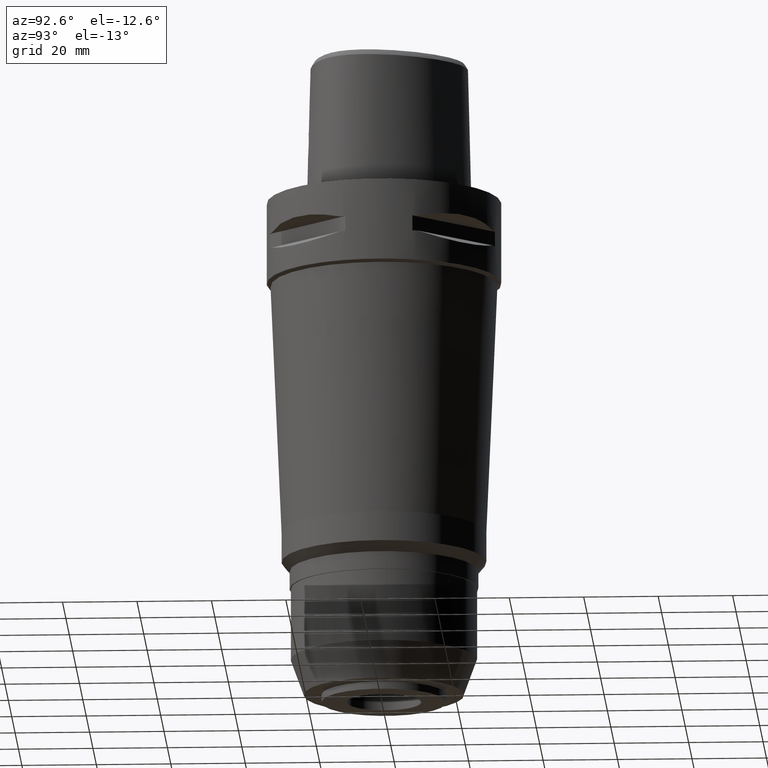
[diagram: clean part render]
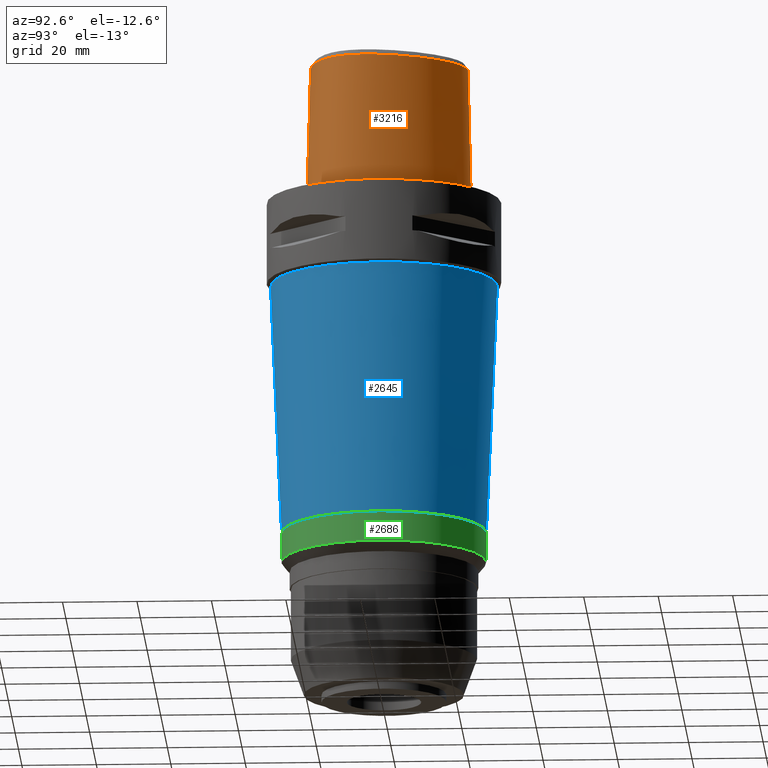
[diagram: same view with three faces highlighted in distinct colors, each labeled with its STEP entity id]
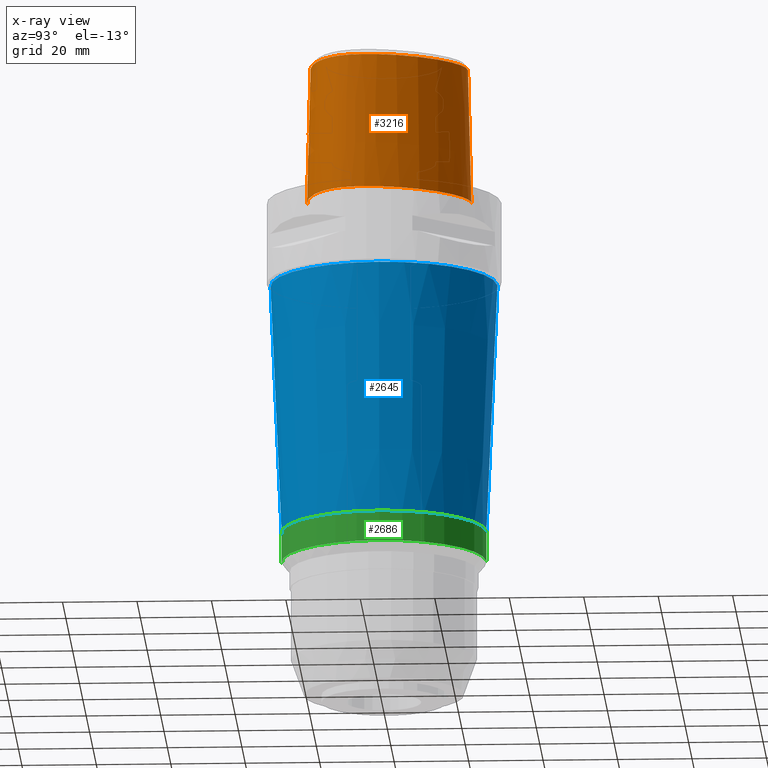
[diagram: x-ray of the same camera — body ghosted, the three highlighted faces saturated]
A machine part, auxiliary view with three faces highlighted in distinct colors.
The next image is the same camera in x-ray (body ghosted, the three faces saturated) — at least one of them is partly hidden behind the body in this view.
Their STEP definitions:

[orange] entity #3216 — the highlighted face is a freeform B-spline surface patch.
#130=CARTESIAN_POINT('',(3.637738219117E0,-1.956971420299E1,3.652185956444E1));
#140=CARTESIAN_POINT('',(-1.753179709631E-11,2.256201468012E1,
3.652186680744E1));
#141=CARTESIAN_POINT('',(4.059692186485E-1,2.256201468011E1,3.652186680744E1));
#142=CARTESIAN_POINT('',(1.215708190393E0,2.251895927503E1,3.652180780509E1));
#143=CARTESIAN_POINT('',(2.502513231461E0,2.231394722388E1,3.652187350702E1));
#144=CARTESIAN_POINT('',(3.856857694488E0,2.195078888201E1,3.652186642934E1));
#145=CARTESIAN_POINT('',(5.288803310858E0,2.140839809336E1,3.652186813346E1));
#146=CARTESIAN_POINT('',(6.814106100568E0,2.065269086277E1,3.652187266965E1));
#147=CARTESIAN_POINT('',(8.388076620838E0,1.967742327895E1,3.652186490368E1));
#148=CARTESIAN_POINT('',(9.953552473781E0,1.850620849464E1,3.652187142295E1));
#149=CARTESIAN_POINT('',(1.154707336375E1,1.710208464275E1,3.652186088107E1));
#150=CARTESIAN_POINT('',(1.325718400724E1,1.532699897142E1,3.652186209440E1));
#151=CARTESIAN_POINT('',(1.494786977344E1,1.324423809590E1,3.652187037438E1));
#152=CARTESIAN_POINT('',(1.651943836388E1,1.094485554210E1,3.652186543555E1));
#153=CARTESIAN_POINT('',(1.791696023472E1,8.492674143887E0,3.652185673720E1));
#154=CARTESIAN_POINT('',(1.909029754391E1,5.977921619796E0,3.652187113067E1));
#155=CARTESIAN_POINT('',(2.001071496840E1,3.483876746223E0,3.652186291024E1));
#156=CARTESIAN_POINT('',(2.064766116967E1,1.180632668431E0,3.652186446136E1));
#157=CARTESIAN_POINT('',(2.104399964850E1,-8.908057052164E-1,3.652186881126E1));
#158=CARTESIAN_POINT('',(2.125189848031E1,-2.816681699648E0,3.652186429065E1));
#159=CARTESIAN_POINT('',(2.128786162353E1,-4.642633843035E0,3.652187260590E1));
#160=CARTESIAN_POINT('',(2.116147594957E1,-6.317201025537E0,3.652186530750E1));
#161=CARTESIAN_POINT('',(2.090025276163E1,-7.808034691474E0,3.652186825432E1));
#162=CARTESIAN_POINT('',(2.052354294955E1,-9.146651933778E0,3.652187406129E1));
#163=CARTESIAN_POINT('',(2.004844662487E1,-1.034256039050E1,3.652187144025E1));
#164=CARTESIAN_POINT('',(1.948009210008E1,-1.142549541665E1,3.652186517804E1));
#165=CARTESIAN_POINT('',(1.879235085262E1,-1.245027677572E1,3.652185118805E1));
#166=CARTESIAN_POINT('',(1.795148571518E1,-1.345723944660E1,3.652187504159E1));
#167=CARTESIAN_POINT('',(1.693561194127E1,-1.444589288719E1,3.652186356756E1));
#168=CARTESIAN_POINT('',(1.572025821129E1,-1.541239646868E1,3.652187093910E1));
#169=CARTESIAN_POINT('',(1.427441325474E1,-1.634809682721E1,3.652186983755E1));
#170=CARTESIAN_POINT('',(1.261807130218E1,-1.721143313425E1,3.652186359817E1));
#171=CARTESIAN_POINT('',(1.079564855236E1,-1.796873525914E1,3.652187886681E1));
#172=CARTESIAN_POINT('',(8.744535281075E0,-1.863524815404E1,3.652185431493E1));
#173=CARTESIAN_POINT('',(6.321109923199E0,-1.920810576319E1,3.652188260620E1));
#174=CARTESIAN_POINT('',(4.554734790905E0,-1.947201126586E1,3.652183600593E1));
#175=CARTESIAN_POINT('',(3.637738219117E0,-1.956971420299E1,3.652185956444E1));
#247=DIRECTION('',(-1.665636293796E-9,-2.499140646182E-2,-9.996876660253E-1));
#248=VECTOR('',#247,1.225382733632E1);
#249=CARTESIAN_POINT('',(2.041042029991E-8,-1.988004246002E1,3.180000004972E1));
#250=LINE('',#249,#248);
#268=CARTESIAN_POINT('',(-8.734060253135E-13,-2.038876923348E1,1.145E1));
#273=DIRECTION('',(-5.344529075988E-13,-2.499051295390E-2,-9.996876883619E-1));
#274=VECTOR('',#273,1.145357708542E1);
#275=CARTESIAN_POINT('',(-8.734060253135E-13,-2.038876923348E1,1.145E1));
#276=LINE('',#275,#274);
#296=CARTESIAN_POINT('',(-6.994803601024E-12,-2.0675E1,7.419990547911E-14));
#297=CARTESIAN_POINT('',(9.696277241607E-1,-2.0675E1,7.419990547911E-14));
#298=CARTESIAN_POINT('',(2.869323182917E0,-2.059665206108E1,
-3.443629597593E-14));
#299=CARTESIAN_POINT('',(5.628892434573E0,-2.025948305172E1,0.E0));
#300=CARTESIAN_POINT('',(8.212436796028E0,-1.972494186774E1,0.E0));
#301=CARTESIAN_POINT('',(1.055597973773E1,-1.902990564621E1,0.E0));
#302=CARTESIAN_POINT('',(1.262660344190E1,-1.821489800558E1,0.E0));
#303=CARTESIAN_POINT('',(1.442647808134E1,-1.731401627908E1,0.E0));
#304=CARTESIAN_POINT('',(1.597839645051E1,-1.634840968166E1,0.E0));
#305=CARTESIAN_POINT('',(1.729281960120E1,-1.534469091911E1,0.E0));
#306=CARTESIAN_POINT('',(1.840650512325E1,-1.430616174029E1,0.E0));
#307=CARTESIAN_POINT('',(1.934077756395E1,-1.323800062297E1,0.E0));
#308=CARTESIAN_POINT('',(2.012500176300E1,-1.212640046703E1,0.E0));
#309=CARTESIAN_POINT('',(2.077630963133E1,-1.094552325843E1,0.E0));
#310=CARTESIAN_POINT('',(2.130486514484E1,-9.682181809785E0,0.E0));
#311=CARTESIAN_POINT('',(2.172376206675E1,-8.295193919519E0,0.E0));
#312=CARTESIAN_POINT('',(2.202312056010E1,-6.764018905119E0,0.E0));
#313=CARTESIAN_POINT('',(2.218684730726E1,-5.054629295905E0,0.E0));
#314=CARTESIAN_POINT('',(2.218811908827E1,-3.165592134656E0,0.E0));
#315=CARTESIAN_POINT('',(2.199905226159E1,-1.084853794272E0,0.E0));
#316=CARTESIAN_POINT('',(2.158830013197E1,1.183756809833E0,0.E0));
#317=CARTESIAN_POINT('',(2.092943410609E1,3.612537132412E0,0.E0));
#318=CARTESIAN_POINT('',(2.000599650194E1,6.153756352748E0,0.E0));
#319=CARTESIAN_POINT('',(1.882401156021E1,8.726465449099E0,0.E0));
#320=CARTESIAN_POINT('',(1.741188367108E1,1.123978369355E1,0.E0));
#321=CARTESIAN_POINT('',(1.581553256589E1,1.360754052028E1,0.E0));
#322=CARTESIAN_POINT('',(1.410265285497E1,1.574816844294E1,0.E0));
#323=CARTESIAN_POINT('',(1.233221950781E1,1.761876304960E1,0.E0));
#324=CARTESIAN_POINT('',(1.056748826054E1,1.919100276061E1,0.E0));
#325=CARTESIAN_POINT('',(8.844934705549E0,2.047447793490E1,0.E0));
#326=CARTESIAN_POINT('',(7.188492926757E0,2.148988068005E1,0.E0));
#327=CARTESIAN_POINT('',(5.609342914043E0,2.226541486842E1,0.E0));
#328=CARTESIAN_POINT('',(4.104373905572E0,2.283161133478E1,0.E0));
#329=CARTESIAN_POINT('',(2.671691629950E0,2.321243880612E1,0.E0));
#330=CARTESIAN_POINT('',(1.305815271442E0,2.342910893410E1,
-3.311380480877E-14));
#331=CARTESIAN_POINT('',(4.290431846877E-1,2.347499999999E1,
7.135033304924E-14));
#332=CARTESIAN_POINT('',(4.298360401327E-11,2.347499999999E1,
7.135033304924E-14));
#337=CARTESIAN_POINT('',(4.298360401327E-11,2.347499999999E1,
7.135033304924E-14));
#373=CARTESIAN_POINT('',(-6.994803601024E-12,-2.0675E1,7.419990547911E-14));
#1082=CARTESIAN_POINT('',(-8.734060253135E-13,-2.038876923348E1,1.145E1));
#1083=CARTESIAN_POINT('',(3.518410039390E-1,-2.038876923348E1,1.145E1));
#1084=CARTESIAN_POINT('',(1.056002269219E0,-2.037568214282E1,1.154238708990E1));
#1085=CARTESIAN_POINT('',(2.040385422200E0,-2.032131306427E1,1.194792367503E1));
#1086=CARTESIAN_POINT('',(2.891794145479E0,-2.024379318177E1,1.259807706062E1));
#1087=CARTESIAN_POINT('',(3.545775398700E0,-2.016065841224E1,1.344776599254E1));
#1088=CARTESIAN_POINT('',(3.957111572053E0,-2.009016928170E1,1.443938952574E1));
#1089=CARTESIAN_POINT('',(4.096327614963E0,-2.004685475213E1,1.549997055253E1));
#1090=CARTESIAN_POINT('',(3.957577704511E0,-2.003680793094E1,1.655714913641E1));
#1091=CARTESIAN_POINT('',(3.549577819491E0,-2.005726835327E1,1.754497021868E1));
#1092=CARTESIAN_POINT('',(2.899403737140E0,-2.009772754991E1,1.839411373098E1));
#1093=CARTESIAN_POINT('',(2.049555943288E0,-2.014302748467E1,1.904720420744E1));
#1094=CARTESIAN_POINT('',(1.060000729701E0,-2.017769463663E1,1.945708074101E1));
#1095=CARTESIAN_POINT('',(3.531896813644E-1,-2.018628283969E1,1.955E1));
#1096=CARTESIAN_POINT('',(0.E0,-2.018628283969E1,1.955E1));
#1101=CARTESIAN_POINT('',(3.736696120838E0,-1.967778323292E1,3.180000004973E1));
#1102=CARTESIAN_POINT('',(3.726005752326E0,-1.966575923680E1,3.232454431401E1));
#1103=CARTESIAN_POINT('',(3.704089546608E0,-1.964135163374E1,3.337368958252E1));
#1104=CARTESIAN_POINT('',(3.671106187705E0,-1.960533295284E1,3.494764256979E1));
#1105=CARTESIAN_POINT('',(3.649042743234E0,-1.958170238761E1,3.599710209057E1));
#1106=CARTESIAN_POINT('',(3.637738219117E0,-1.956971420299E1,3.652185956444E1));
#1111=DIRECTION('',(1.656446034497E-12,2.499051290963E-2,-9.996876883630E-1));
#1112=VECTOR('',#1111,3.653327657485E1);
#1113=CARTESIAN_POINT('',(-1.753179709631E-11,2.256201468012E1,
3.652186680744E1));
#1114=LINE('',#1113,#1112);
#1118=CARTESIAN_POINT('',(3.736696120838E0,-1.967778323292E1,3.180000004973E1));
#1119=CARTESIAN_POINT('',(3.322953877844E0,-1.972294683117E1,3.180000004973E1));
#1120=CARTESIAN_POINT('',(2.494485023251E0,-1.979770229043E1,3.179999998342E1));
#1121=CARTESIAN_POINT('',(1.247889117313E0,-1.986528006854E1,3.179999998343E1));
#1122=CARTESIAN_POINT('',(4.161790006858E-1,-1.988004246001E1,
3.180000004972E1));
#1123=CARTESIAN_POINT('',(2.041042029991E-8,-1.988004246002E1,
3.180000004972E1));
#1128=CARTESIAN_POINT('',(2.041042029991E-8,-1.988004246002E1,
3.180000004972E1));
#1617=VERTEX_POINT('',#130);
#1618=VERTEX_POINT('',#1101);
#1624=CARTESIAN_POINT('',(-1.753179709631E-11,2.256201468012E1,
3.652186680744E1));
#1625=VERTEX_POINT('',#1624);
#1626=VERTEX_POINT('',#337);
#1627=VERTEX_POINT('',#373);
#1628=VERTEX_POINT('',#1128);
#1629=CARTESIAN_POINT('',(0.E0,-2.018628283969E1,1.955E1));
#1630=VERTEX_POINT('',#1629);
#1631=VERTEX_POINT('',#268);
#3104=CARTESIAN_POINT('',(-6.840631435233E-1,-2.068668115883E1,
-7.304374764660E-1));
#3105=CARTESIAN_POINT('',(-6.779734153640E-1,-2.037023492491E1,
1.193047878228E1));
#3106=CARTESIAN_POINT('',(-6.718836872047E-1,-2.005378869098E1,
2.459139504102E1));
#3107=CARTESIAN_POINT('',(-6.657939590453E-1,-1.973734245706E1,
3.725231129976E1));
#3108=CARTESIAN_POINT('',(-4.561077449036E-1,-2.069106755112E1,
-7.304374764660E-1));
#3109=CARTESIAN_POINT('',(-4.520500681702E-1,-2.037458456176E1,
1.193047878228E1));
#3110=CARTESIAN_POINT('',(-4.479923914368E-1,-2.005810157240E1,
2.459139504102E1));
#3111=CARTESIAN_POINT('',(-4.439347147035E-1,-1.974161858304E1,
3.725231129976E1));
#3112=CARTESIAN_POINT('',(1.886855603003E0,-2.071358919031E1,
-7.304374764660E-1));
#3113=CARTESIAN_POINT('',(1.870063866720E0,-2.039691460049E1,1.193047878228E1));
#3114=CARTESIAN_POINT('',(1.853272130438E0,-2.008024001068E1,2.459139504102E1));
#3115=CARTESIAN_POINT('',(1.836480394156E0,-1.976356542086E1,3.725231129976E1));
#3116=CARTESIAN_POINT('',(6.344715575795E0,-2.031619964464E1,
-7.304374764660E-1));
#3117=CARTESIAN_POINT('',(6.288476595026E0,-2.000290580423E1,1.193047878228E1));
#3118=CARTESIAN_POINT('',(6.232237614258E0,-1.968961196383E1,2.459139504102E1));
#3119=CARTESIAN_POINT('',(6.175998633490E0,-1.937631812342E1,3.725231129976E1));
#3120=CARTESIAN_POINT('',(1.123887130078E1,-1.891049775534E1,
-7.304374764660E-1));
#3121=CARTESIAN_POINT('',(1.113012658667E1,-1.861140124601E1,1.193047878228E1));
#3122=CARTESIAN_POINT('',(1.102138187256E1,-1.831230473668E1,2.459139504102E1));
#3123=CARTESIAN_POINT('',(1.091263715845E1,-1.801320822735E1,3.725231129976E1));
#3124=CARTESIAN_POINT('',(1.468244496867E1,-1.723001772587E1,
-7.304374764660E-1));
#3125=CARTESIAN_POINT('',(1.452531267775E1,-1.695413756079E1,1.193047878228E1));
#3126=CARTESIAN_POINT('',(1.436818038683E1,-1.667825739571E1,2.459139504102E1));
#3127=CARTESIAN_POINT('',(1.421104809591E1,-1.640237723064E1,3.725231129976E1));
#3128=CARTESIAN_POINT('',(1.697022730795E1,-1.569280482714E1,
-7.304374764660E-1));
#3129=CARTESIAN_POINT('',(1.677374388642E1,-1.544292480257E1,1.193047878228E1));
#3130=CARTESIAN_POINT('',(1.657726046490E1,-1.519304477800E1,2.459139504102E1));
#3131=CARTESIAN_POINT('',(1.638077704338E1,-1.494316475343E1,3.725231129976E1));
#3132=CARTESIAN_POINT('',(1.858171406217E1,-1.418198046200E1,
-7.304374764660E-1));
#3133=CARTESIAN_POINT('',(1.835112160913E1,-1.396357042271E1,1.193047878228E1));
#3134=CARTESIAN_POINT('',(1.812052915609E1,-1.374516038343E1,2.459139504102E1));
#3135=CARTESIAN_POINT('',(1.788993670304E1,-1.352675034414E1,3.725231129976E1));
#3136=CARTESIAN_POINT('',(1.966427014215E1,-1.283600704375E1,
-7.304374764660E-1));
#3137=CARTESIAN_POINT('',(1.940779776125E1,-1.264961932720E1,1.193047878228E1));
#3138=CARTESIAN_POINT('',(1.915132538035E1,-1.246323161065E1,2.459139504102E1));
#3139=CARTESIAN_POINT('',(1.889485299944E1,-1.227684389410E1,3.725231129976E1));
#3140=CARTESIAN_POINT('',(2.036546124072E1,-1.175800452953E1,
-7.304374764660E-1));
#3141=CARTESIAN_POINT('',(2.009084481804E1,-1.159945466337E1,1.193047878228E1));
#3142=CARTESIAN_POINT('',(1.981622839536E1,-1.144090479722E1,2.459139504102E1));
#3143=CARTESIAN_POINT('',(1.954161197268E1,-1.128235493106E1,3.725231129976E1));
#3144=CARTESIAN_POINT('',(2.094844325402E1,-1.061175396792E1,
-7.304374764660E-1));
#3145=CARTESIAN_POINT('',(2.065879056777E1,-1.048283623234E1,1.193047878228E1));
#3146=CARTESIAN_POINT('',(2.036913788153E1,-1.035391849677E1,2.459139504102E1));
#3147=CARTESIAN_POINT('',(2.007948519528E1,-1.022500076120E1,3.725231129976E1));
#3148=CARTESIAN_POINT('',(2.157281238775E1,-9.001246193735E0,
-7.304374764660E-1));
#3149=CARTESIAN_POINT('',(2.126836750849E1,-8.910752273169E0,1.193047878228E1));
#3150=CARTESIAN_POINT('',(2.096392262924E1,-8.820258352603E0,2.459139504102E1));
#3151=CARTESIAN_POINT('',(2.065947774999E1,-8.729764432038E0,3.725231129976E1));
#3152=CARTESIAN_POINT('',(2.207548128607E1,-6.850245534759E0,
-7.304374764660E-1));
#3153=CARTESIAN_POINT('',(2.176083721008E1,-6.805026057257E0,1.193047878228E1));
#3154=CARTESIAN_POINT('',(2.144619313410E1,-6.759806579754E0,2.459139504102E1));
#3155=CARTESIAN_POINT('',(2.113154905811E1,-6.714587102252E0,3.725231129976E1));
#3156=CARTESIAN_POINT('',(2.226285556029E1,-4.100361500079E0,
-7.304374764660E-1));
#3157=CARTESIAN_POINT('',(2.194536987677E1,-4.102220498714E0,1.193047878228E1));
#3158=CARTESIAN_POINT('',(2.162788419325E1,-4.104079497350E0,2.459139504102E1));
#3159=CARTESIAN_POINT('',(2.131039850973E1,-4.105938495986E0,3.725231129976E1));
#3160=CARTESIAN_POINT('',(2.199640701092E1,-2.778990171146E-1,
-7.304374764660E-1));
#3161=CARTESIAN_POINT('',(2.168301110465E1,-3.332743871281E-1,
1.193047878228E1));
#3162=CARTESIAN_POINT('',(2.136961519838E1,-3.886497571416E-1,
2.459139504102E1));
#3163=CARTESIAN_POINT('',(2.105621929211E1,-4.440251271551E-1,
3.725231129976E1));
#3164=CARTESIAN_POINT('',(2.076670354433E1,4.663413652263E0,
-7.304374764660E-1));
#3165=CARTESIAN_POINT('',(2.046725052836E1,4.555493679699E0,1.193047878228E1));
#3166=CARTESIAN_POINT('',(2.016779751239E1,4.447573707135E0,2.459139504102E1));
#3167=CARTESIAN_POINT('',(1.986834449641E1,4.339653734571E0,3.725231129976E1));
#3168=CARTESIAN_POINT('',(1.808416037876E1,1.044089486958E1,
-7.304374764660E-1));
#3169=CARTESIAN_POINT('',(1.780867315828E1,1.028184213020E1,1.193047878228E1));
#3170=CARTESIAN_POINT('',(1.753318593781E1,1.012278939081E1,2.459139504102E1));
#3171=CARTESIAN_POINT('',(1.725769871734E1,9.963736651423E0,3.725231129976E1));
#3172=CARTESIAN_POINT('',(1.442198651612E1,1.565278599923E1,
-7.304374764660E-1));
#3173=CARTESIAN_POINT('',(1.417879765611E1,1.544741201258E1,1.193047878228E1));
#3174=CARTESIAN_POINT('',(1.393560879610E1,1.524203802592E1,2.459139504102E1));
#3175=CARTESIAN_POINT('',(1.369241993609E1,1.503666403927E1,3.725231129976E1));
#3176=CARTESIAN_POINT('',(1.075753573487E1,1.918839675361E1,
-7.304374764660E-1));
#3177=CARTESIAN_POINT('',(1.055288411404E1,1.894467594103E1,1.193047878228E1));
#3178=CARTESIAN_POINT('',(1.034823249321E1,1.870095512845E1,2.459139504102E1));
#3179=CARTESIAN_POINT('',(1.014358087238E1,1.845723431586E1,3.725231129976E1));
#3180=CARTESIAN_POINT('',(7.580410837583E0,2.133037925850E1,
-7.304374764660E-1));
#3181=CARTESIAN_POINT('',(7.420053181550E0,2.105635752770E1,1.193047878228E1));
#3182=CARTESIAN_POINT('',(7.259695525517E0,2.078233579690E1,2.459139504102E1));
#3183=CARTESIAN_POINT('',(7.099337869484E0,2.050831406609E1,3.725231129976E1));
#3184=CARTESIAN_POINT('',(5.105252914209E0,2.254305023766E1,
-7.304374764660E-1));
#3185=CARTESIAN_POINT('',(4.987110700837E0,2.224795288908E1,1.193047878228E1));
#3186=CARTESIAN_POINT('',(4.868968487465E0,2.195285554050E1,2.459139504102E1));
#3187=CARTESIAN_POINT('',(4.750826274093E0,2.165775819192E1,3.725231129976E1));
#3188=CARTESIAN_POINT('',(2.568271204734E0,2.331126237890E1,
-7.304374764660E-1));
#3189=CARTESIAN_POINT('',(2.503210923247E0,2.299958947788E1,1.193047878228E1));
#3190=CARTESIAN_POINT('',(2.438150641760E0,2.268791657686E1,2.459139504102E1));
#3191=CARTESIAN_POINT('',(2.373090360272E0,2.237624367583E1,3.725231129976E1));
#3192=CARTESIAN_POINT('',(6.155340737770E-1,2.351883497246E1,
-7.304374764660E-1));
#3193=CARTESIAN_POINT('',(5.990982059345E-1,2.320165477282E1,1.193047878228E1));
#3194=CARTESIAN_POINT('',(5.826623380920E-1,2.288447457318E1,2.459139504102E1));
#3195=CARTESIAN_POINT('',(5.662264702495E-1,2.256729437354E1,3.725231129976E1));
#3196=CARTESIAN_POINT('',(-4.812391252071E-1,2.348607175779E1,
-7.304374764660E-1));
#3197=CARTESIAN_POINT('',(-4.685452000909E-1,2.316976082902E1,
1.193047878228E1));
#3198=CARTESIAN_POINT('',(-4.558512749747E-1,2.285344990024E1,
2.459139504102E1));
#3199=CARTESIAN_POINT('',(-4.431573498585E-1,2.253713897146E1,
3.725231129976E1));
#3200=CARTESIAN_POINT('',(-7.217521644634E-1,2.347150798189E1,
-7.304374764660E-1));
#3201=CARTESIAN_POINT('',(-7.025952913839E-1,2.315559754245E1,
1.193047878228E1));
#3202=CARTESIAN_POINT('',(-6.834384183043E-1,2.283968710300E1,
2.459139504102E1));
#3203=CARTESIAN_POINT('',(-6.642815452248E-1,2.252377666355E1,
3.725231129976E1));
#3204=B_SPLINE_SURFACE_WITH_KNOTS('',3,3,((#3104,#3105,#3106,#3107),(#3108,
#3109,#3110,#3111),(#3112,#3113,#3114,#3115),(#3116,#3117,#3118,#3119),(#3120,
#3121,#3122,#3123),(#3124,#3125,#3126,#3127),(#3128,#3129,#3130,#3131),(#3132,
#3133,#3134,#3135),(#3136,#3137,#3138,#3139),(#3140,#3141,#3142,#3143),(#3144,
#3145,#3146,#3147),(#3148,#3149,#3150,#3151),(#3152,#3153,#3154,#3155),(#3156,
#3157,#3158,#3159),(#3160,#3161,#3162,#3163),(#3164,#3165,#3166,#3167),(#3168,
#3169,#3170,#3171),(#3172,#3173,#3174,#3175),(#3176,#3177,#3178,#3179),(#3180,
#3181,#3182,#3183),(#3184,#3185,#3186,#3187),(#3188,#3189,#3190,#3191),(#3192,
#3193,#3194,#3195),(#3196,#3197,#3198,#3199),(#3200,#3201,#3202,#3203)),
.UNSPECIFIED.,.F.,.F.,.F.,(4,1,1,1,1,1,1,1,1,1,1,1,1,1,1,1,1,1,1,1,1,1,4),(4,4),
(-8.985960173573E-3,0.E0,8.333333333339E-2,1.666666666667E-1,2.083333333333E-1,
2.5E-1,2.916666666667E-1,3.125E-1,3.333333333332E-1,3.541666666666E-1,
3.749999999999E-1,4.166666666666E-1,4.583333333332E-1,4.999999999999E-1,
5.833333333331E-1,6.666666666665E-1,7.499999999998E-1,8.333333333330E-1,
8.749999999997E-1,9.166666666664E-1,9.583333333330E-1,1.E0,1.011710456763E0),(
6.551019827300E-9,9.999996658980E-1),.UNSPECIFIED.);
#3205=ORIENTED_EDGE('',*,*,#2481,.F.);
#3206=ORIENTED_EDGE('',*,*,#2465,.F.);
#3207=ORIENTED_EDGE('',*,*,#3096,.T.);
#3208=ORIENTED_EDGE('',*,*,#2461,.F.);
#3210=ORIENTED_EDGE('',*,*,#3209,.F.);
#3211=ORIENTED_EDGE('',*,*,#1824,.T.);
#3212=ORIENTED_EDGE('',*,*,#2090,.F.);
#3213=ORIENTED_EDGE('',*,*,#2455,.T.);
#3214=EDGE_LOOP('',(#3205,#3206,#3207,#3208,#3210,#3211,#3212,#3213));
#3215=FACE_OUTER_BOUND('',#3214,.F.);
#176=B_SPLINE_CURVE_WITH_KNOTS('',3,(#140,#141,#142,#143,#144,#145,#146,#147,
#148,#149,#150,#151,#152,#153,#154,#155,#156,#157,#158,#159,#160,#161,#162,#163,
#164,#165,#166,#167,#168,#169,#170,#171,#172,#173,#174,#175),.UNSPECIFIED.,.F.,
.F.,(4,1,1,1,1,1,1,1,1,1,1,1,1,1,1,1,1,1,1,1,1,1,1,1,1,1,1,1,1,1,1,1,1,4),(0.E0,
3.030303030303E-2,6.060606060606E-2,9.090909090909E-2,1.212121212121E-1,
1.515151515152E-1,1.818181818182E-1,2.121212121212E-1,2.424242424242E-1,
2.727272727273E-1,3.030303030303E-1,3.333333333333E-1,3.636363636364E-1,
3.939393939394E-1,4.242424242424E-1,4.545454545455E-1,4.848484848485E-1,
5.151515151515E-1,5.454545454545E-1,5.757575757576E-1,6.060606060606E-1,
6.363636363636E-1,6.666666666667E-1,6.969696969697E-1,7.272727272727E-1,
7.575757575758E-1,7.878787878788E-1,8.181818181818E-1,8.484848484848E-1,
8.787878787879E-1,9.090909090909E-1,9.393939393939E-1,9.696969696970E-1,1.E0),
.UNSPECIFIED.);
#333=B_SPLINE_CURVE_WITH_KNOTS('',3,(#296,#297,#298,#299,#300,#301,#302,#303,
#304,#305,#306,#307,#308,#309,#310,#311,#312,#313,#314,#315,#316,#317,#318,#319,
#320,#321,#322,#323,#324,#325,#326,#327,#328,#329,#330,#331,#332),.UNSPECIFIED.,
.F.,.F.,(4,1,1,1,1,1,1,1,1,1,1,1,1,1,1,1,1,1,1,1,1,1,1,1,1,1,1,1,1,1,1,1,1,1,4),
(0.E0,2.941176470588E-2,5.882352941176E-2,8.823529411765E-2,1.176470588235E-1,
1.470588235294E-1,1.764705882353E-1,2.058823529412E-1,2.352941176471E-1,
2.647058823529E-1,2.941176470588E-1,3.235294117647E-1,3.529411764706E-1,
3.823529411765E-1,4.117647058824E-1,4.411764705882E-1,4.705882352941E-1,5.E-1,
5.294117647059E-1,5.588235294118E-1,5.882352941176E-1,6.176470588235E-1,
6.470588235294E-1,6.764705882353E-1,7.058823529412E-1,7.352941176471E-1,
7.647058823529E-1,7.941176470588E-1,8.235294117647E-1,8.529411764706E-1,
8.823529411765E-1,9.117647058824E-1,9.411764705882E-1,9.705882352941E-1,1.E0),
.UNSPECIFIED.);
#1097=B_SPLINE_CURVE_WITH_KNOTS('',3,(#1082,#1083,#1084,#1085,#1086,#1087,#1088,
#1089,#1090,#1091,#1092,#1093,#1094,#1095,#1096),.UNSPECIFIED.,.F.,.F.,(4,1,1,1,
1,1,1,1,1,1,1,1,4),(0.E0,8.333333333333E-2,1.666666666667E-1,2.5E-1,
3.333333333333E-1,4.166666666667E-1,5.E-1,5.833333333333E-1,6.666666666667E-1,
7.5E-1,8.333333333333E-1,9.166666666667E-1,1.E0),.UNSPECIFIED.);
#1107=B_SPLINE_CURVE_WITH_KNOTS('',3,(#1101,#1102,#1103,#1104,#1105,#1106),
.UNSPECIFIED.,.F.,.F.,(4,1,1,4),(0.E0,3.333333333333E-1,6.666666666667E-1,1.E0),
.UNSPECIFIED.);
#1124=B_SPLINE_CURVE_WITH_KNOTS('',3,(#1118,#1119,#1120,#1121,#1122,#1123),
.UNSPECIFIED.,.F.,.F.,(4,1,1,4),(0.E0,3.333333333333E-1,6.666666666667E-1,1.E0),
.UNSPECIFIED.);
#1824=EDGE_CURVE('',#1618,#1617,#1107,.T.);
#2090=EDGE_CURVE('',#1625,#1617,#176,.T.);
#2455=EDGE_CURVE('',#1625,#1626,#1114,.T.);
#2461=EDGE_CURVE('',#1628,#1630,#250,.T.);
#2465=EDGE_CURVE('',#1631,#1627,#276,.T.);
#2481=EDGE_CURVE('',#1627,#1626,#333,.T.);
#3096=EDGE_CURVE('',#1631,#1630,#1097,.T.);
#3209=EDGE_CURVE('',#1618,#1628,#1124,.T.);
#3216=ADVANCED_FACE('',(#3215),#3204,.T.);

[blue] entity #2645 — the highlighted conical surface has half-angle 2.507 deg.
#546=DIRECTION('',(0.E0,-4.375016209766E-2,-9.990425032582E-1));
#547=VECTOR('',#546,6.786498049771E1);
#548=CARTESIAN_POINT('',(0.E0,3.046910389753E1,-2.27E1));
#549=LINE('',#548,#547);
#553=CARTESIAN_POINT('',(0.E0,0.E0,-9.05E1));
#554=DIRECTION('',(0.E0,0.E0,-1.E0));
#555=DIRECTION('',(0.E0,1.E0,0.E0));
#556=AXIS2_PLACEMENT_3D('',#553,#554,#555);
#561=CARTESIAN_POINT('',(0.E0,0.E0,-2.27E1));
#562=DIRECTION('',(0.E0,0.E0,1.E0));
#563=DIRECTION('',(0.E0,-1.E0,0.E0));
#564=AXIS2_PLACEMENT_3D('',#561,#562,#563);
#569=DIRECTION('',(0.E0,4.375016209766E-2,-9.990425032582E-1));
#570=VECTOR('',#569,6.786498049771E1);
#571=CARTESIAN_POINT('',(0.E0,-3.046910389753E1,-2.27E1));
#572=LINE('',#571,#570);
#1696=CARTESIAN_POINT('',(0.E0,3.046910389753E1,-2.27E1));
#1697=VERTEX_POINT('',#1696);
#1698=CARTESIAN_POINT('',(0.E0,-3.046910389753E1,-2.27E1));
#1699=VERTEX_POINT('',#1698);
#1700=CARTESIAN_POINT('',(0.E0,2.75E1,-9.05E1));
#1701=VERTEX_POINT('',#1700);
#1702=CARTESIAN_POINT('',(0.E0,-2.75E1,-9.05E1));
#1703=VERTEX_POINT('',#1702);
#2631=CARTESIAN_POINT('',(0.E0,0.E0,-5.66E1));
#2632=DIRECTION('',(0.E0,0.E0,1.E0));
#2633=DIRECTION('',(0.E0,1.E0,0.E0));
#2634=AXIS2_PLACEMENT_3D('',#2631,#2632,#2633);
#2635=CONICAL_SURFACE('',#2634,2.898455194876E1,2.5075E0);
#2637=ORIENTED_EDGE('',*,*,#2636,.T.);
#2639=ORIENTED_EDGE('',*,*,#2638,.T.);
#2641=ORIENTED_EDGE('',*,*,#2640,.F.);
#2642=ORIENTED_EDGE('',*,*,#2624,.T.);
#2643=EDGE_LOOP('',(#2637,#2639,#2641,#2642));
#2644=FACE_OUTER_BOUND('',#2643,.F.);
#557=CIRCLE('',#556,2.75E1);
#565=CIRCLE('',#564,3.046910389752E1);
#2624=EDGE_CURVE('',#1699,#1697,#565,.T.);
#2636=EDGE_CURVE('',#1697,#1701,#549,.T.);
#2638=EDGE_CURVE('',#1701,#1703,#557,.T.);
#2640=EDGE_CURVE('',#1699,#1703,#572,.T.);
#2645=ADVANCED_FACE('',(#2644),#2635,.T.);

[green] entity #2686 — the highlighted cylindrical surface (partial cylindrical patch) has radius 27.5 mm, axis along (0, 0, -1).
#553=CARTESIAN_POINT('',(0.E0,0.E0,-9.05E1));
#554=DIRECTION('',(0.E0,0.E0,-1.E0));
#555=DIRECTION('',(0.E0,1.E0,0.E0));
#556=AXIS2_PLACEMENT_3D('',#553,#554,#555);
#584=DIRECTION('',(0.E0,-3.164753064531E-13,-1.E0));
#585=VECTOR('',#584,8.037729775920E0);
#586=CARTESIAN_POINT('',(0.E0,-2.75E1,-9.05E1));
#587=LINE('',#586,#585);
#591=DIRECTION('',(0.E0,3.164753064531E-13,-1.E0));
#592=VECTOR('',#591,8.037729775920E0);
#593=CARTESIAN_POINT('',(0.E0,2.75E1,-9.05E1));
#594=LINE('',#593,#592);
#613=CARTESIAN_POINT('',(0.E0,0.E0,-9.853772977592E1));
#614=DIRECTION('',(0.E0,0.E0,1.E0));
#615=DIRECTION('',(0.E0,-1.E0,0.E0));
#616=AXIS2_PLACEMENT_3D('',#613,#614,#615);
#1700=CARTESIAN_POINT('',(0.E0,2.75E1,-9.05E1));
#1701=VERTEX_POINT('',#1700);
#1702=CARTESIAN_POINT('',(0.E0,-2.75E1,-9.05E1));
#1703=VERTEX_POINT('',#1702);
#1704=CARTESIAN_POINT('',(0.E0,2.75E1,-9.853772977592E1));
#1705=VERTEX_POINT('',#1704);
#1706=CARTESIAN_POINT('',(0.E0,-2.75E1,-9.853772977592E1));
#1707=VERTEX_POINT('',#1706);
#2674=CARTESIAN_POINT('',(0.E0,1.308535104889E-14,6.85E0));
#2675=DIRECTION('',(0.E0,0.E0,-1.E0));
#2676=DIRECTION('',(0.E0,-1.E0,0.E0));
#2677=AXIS2_PLACEMENT_3D('',#2674,#2675,#2676);
#2678=CYLINDRICAL_SURFACE('',#2677,2.75E1);
#2679=ORIENTED_EDGE('',*,*,#2664,.T.);
#2681=ORIENTED_EDGE('',*,*,#2680,.F.);
#2682=ORIENTED_EDGE('',*,*,#2667,.F.);
#2683=ORIENTED_EDGE('',*,*,#2638,.F.);
#2684=EDGE_LOOP('',(#2679,#2681,#2682,#2683));
#2685=FACE_OUTER_BOUND('',#2684,.F.);
#557=CIRCLE('',#556,2.75E1);
#617=CIRCLE('',#616,2.75E1);
#2638=EDGE_CURVE('',#1701,#1703,#557,.T.);
#2664=EDGE_CURVE('',#1701,#1705,#594,.T.);
#2667=EDGE_CURVE('',#1703,#1707,#587,.T.);
#2680=EDGE_CURVE('',#1707,#1705,#617,.T.);
#2686=ADVANCED_FACE('',(#2685),#2678,.T.);